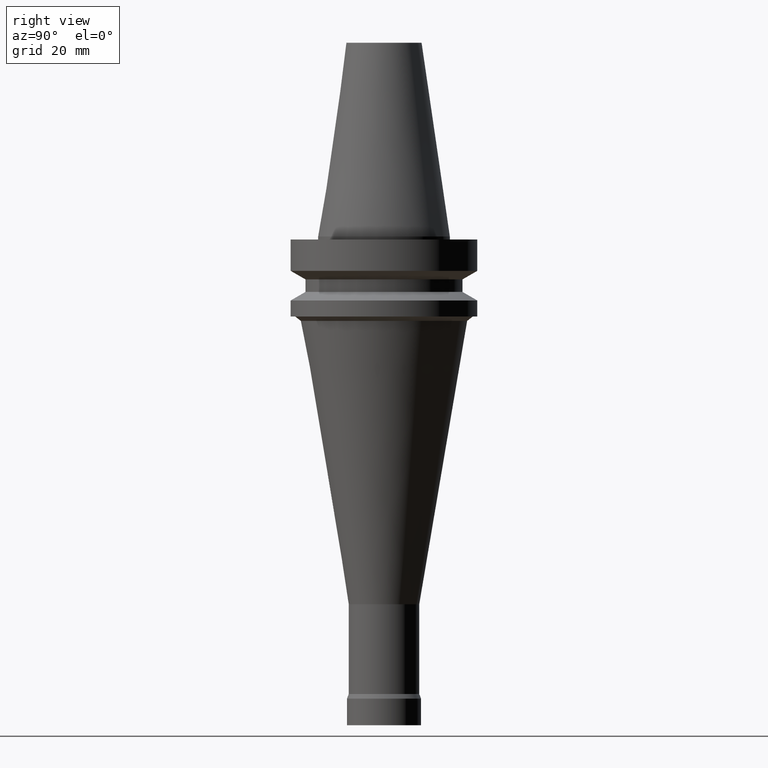
[diagram: clean part render]
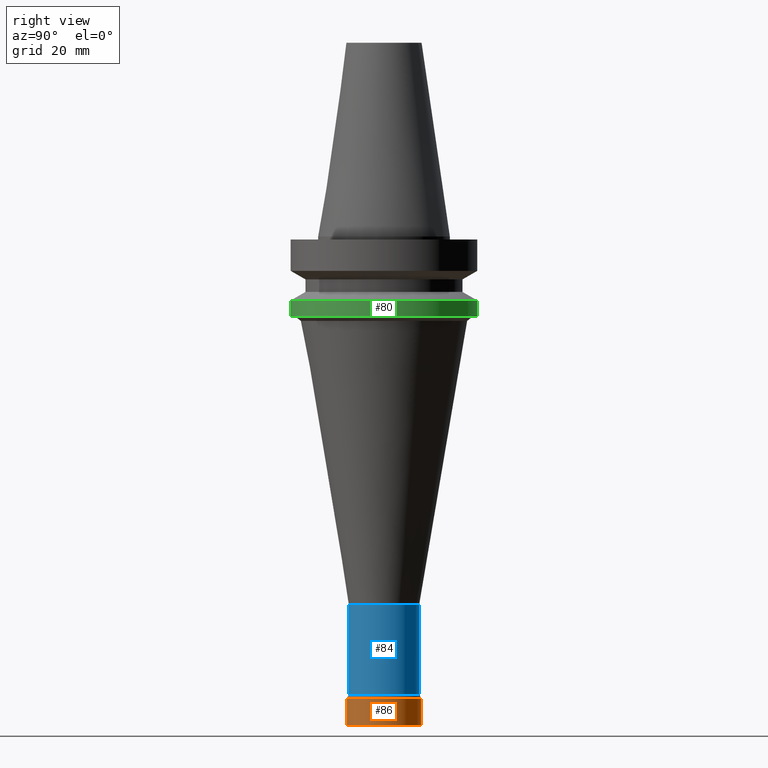
[diagram: same view with three faces highlighted in distinct colors, each labeled with its STEP entity id]
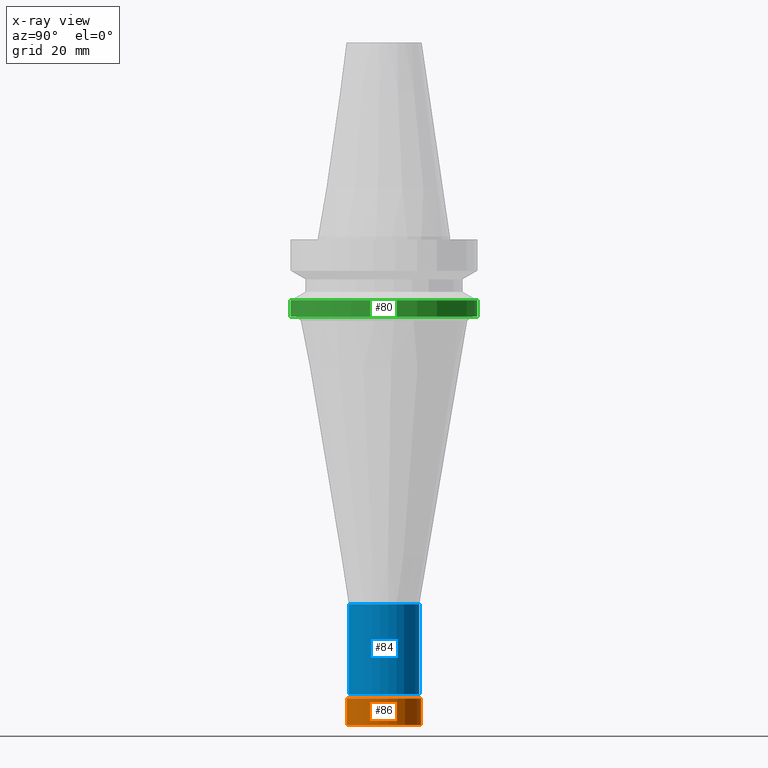
[diagram: x-ray of the same camera — body ghosted, the three highlighted faces saturated]
A machine part, right view with three faces highlighted in distinct colors.
The next image is the same camera in x-ray (body ghosted, the three faces saturated) — at least one of them is partly hidden behind the body in this view.
Their STEP definitions:

[orange] entity #86 — the highlighted cylindrical surface (bore or boss wall) has radius 12.5 mm, axis along (-0, -0, 1).
#86=ADVANCED_FACE('',(#125,#126),#127,.T.);
#125=FACE_BOUND('',#171,.T.);
#126=FACE_BOUND('',#172,.T.);
#127=CYLINDRICAL_SURFACE('',#173,12.5);
#171=EDGE_LOOP('',(#239));
#172=EDGE_LOOP('',(#240));
#173=AXIS2_PLACEMENT_3D('',#241,#242,#243);
#239=ORIENTED_EDGE('',*,*,#274,.F.);
#240=ORIENTED_EDGE('',*,*,#273,.T.);
#241=CARTESIAN_POINT('',(9.82779056315751E-015,1.9655581126315E-014,-160.5));
#242=DIRECTION('',(-6.12323399573677E-017,-1.22464679914735E-016,1.0));
#243=DIRECTION('',(-1.23259516440783E-032,1.0,1.22464679914735E-016));
#273=EDGE_CURVE('',#299,#299,#300,.T.);
#274=EDGE_CURVE('',#301,#301,#302,.T.);
#299=VERTEX_POINT('',#329);
#300=CIRCLE('',#330,12.5);
#301=VERTEX_POINT('',#331);
#302=CIRCLE('',#332,12.5);
#329=CARTESIAN_POINT('',(9.55224503334936E-015,12.5,-156.0));
#330=AXIS2_PLACEMENT_3D('',#370,#371,#372);
#331=CARTESIAN_POINT('',(1.01033360929657E-014,12.5,-165.0));
#332=AXIS2_PLACEMENT_3D('',#373,#374,#375);
#370=CARTESIAN_POINT('',(9.55224503334936E-015,1.91044900666987E-014,-156.0));
#371=DIRECTION('',(6.12323399573677E-017,1.22464679914735E-016,-1.0));
#372=DIRECTION('',(-1.23259516440783E-032,1.0,1.22464679914735E-016));
#373=CARTESIAN_POINT('',(1.01033360929657E-014,2.02066721859313E-014,-165.0));
#374=DIRECTION('',(6.12323399573677E-017,1.22464679914735E-016,-1.0));
#375=DIRECTION('',(-1.23259516440783E-032,1.0,1.22464679914735E-016));

[blue] entity #84 — the highlighted cylindrical surface (bore or boss wall) has radius 11.9 mm, axis along (-0, -0, 1).
#84=ADVANCED_FACE('',(#119,#120),#121,.T.);
#119=FACE_BOUND('',#165,.T.);
#120=FACE_BOUND('',#166,.T.);
#121=CYLINDRICAL_SURFACE('',#167,11.9);
#165=EDGE_LOOP('',(#229));
#166=EDGE_LOOP('',(#230));
#167=AXIS2_PLACEMENT_3D('',#231,#232,#233);
#229=ORIENTED_EDGE('',*,*,#272,.F.);
#230=ORIENTED_EDGE('',*,*,#271,.T.);
#231=CARTESIAN_POINT('',(8.5290879021664E-015,1.70581758043328E-014,-139.290575994723));
#232=DIRECTION('',(-6.12323399573677E-017,-1.22464679914735E-016,1.0));
#233=DIRECTION('',(-1.23259516440783E-032,1.0,1.22464679914735E-016));
#271=EDGE_CURVE('',#295,#295,#296,.T.);
#272=EDGE_CURVE('',#297,#297,#298,.T.);
#295=VERTEX_POINT('',#325);
#296=CIRCLE('',#326,11.9);
#297=VERTEX_POINT('',#327);
#298=CIRCLE('',#328,11.9);
#325=CARTESIAN_POINT('',(7.60081000436489E-015,11.9,-124.130647459445));
#326=AXIS2_PLACEMENT_3D('',#364,#365,#366);
#327=CARTESIAN_POINT('',(9.45736579996791E-015,11.9,-154.45050453));
#328=AXIS2_PLACEMENT_3D('',#367,#368,#369);
#364=CARTESIAN_POINT('',(7.60081000436489E-015,1.52016200087298E-014,-124.130647459445));
#365=DIRECTION('',(6.12323399573677E-017,1.22464679914735E-016,-1.0));
#366=DIRECTION('',(-1.23259516440783E-032,1.0,1.22464679914735E-016));
#367=CARTESIAN_POINT('',(9.45736579996791E-015,1.89147315999358E-014,-154.45050453));
#368=DIRECTION('',(6.12323399573677E-017,1.22464679914735E-016,-1.0));
#369=DIRECTION('',(-1.23259516440783E-032,1.0,1.22464679914735E-016));

[green] entity #80 — the highlighted cylindrical surface (bore or boss wall) has radius 31.5 mm, axis along (-0, -0, 1).
#80=ADVANCED_FACE('',(#107,#108),#109,.T.);
#107=FACE_BOUND('',#153,.T.);
#108=FACE_BOUND('',#154,.T.);
#109=CYLINDRICAL_SURFACE('',#155,31.5);
#153=EDGE_LOOP('',(#209));
#154=EDGE_LOOP('',(#210));
#155=AXIS2_PLACEMENT_3D('',#211,#212,#213);
#209=ORIENTED_EDGE('',*,*,#268,.F.);
#210=ORIENTED_EDGE('',*,*,#267,.T.);
#211=CARTESIAN_POINT('',(1.48794586096403E-015,2.97589172192807E-015,-24.3));
#212=DIRECTION('',(-6.12323399573677E-017,-1.22464679914735E-016,1.0));
#213=DIRECTION('',(-1.23259516440783E-032,1.0,1.22464679914735E-016));
#267=EDGE_CURVE('',#287,#287,#288,.T.);
#268=EDGE_CURVE('',#289,#289,#290,.T.);
#287=VERTEX_POINT('',#317);
#288=CIRCLE('',#318,31.5);
#289=VERTEX_POINT('',#319);
#290=CIRCLE('',#320,31.5);
#317=CARTESIAN_POINT('',(1.32261854307914E-015,31.5,-21.6));
#318=AXIS2_PLACEMENT_3D('',#352,#353,#354);
#319=CARTESIAN_POINT('',(1.65327317884893E-015,31.5,-27.0));
#320=AXIS2_PLACEMENT_3D('',#355,#356,#357);
#352=CARTESIAN_POINT('',(1.32261854307914E-015,2.64523708615828E-015,-21.6));
#353=DIRECTION('',(6.12323399573677E-017,1.22464679914735E-016,-1.0));
#354=DIRECTION('',(-1.23259516440783E-032,1.0,1.22464679914735E-016));
#355=CARTESIAN_POINT('',(1.65327317884893E-015,3.30654635769785E-015,-27.0));
#356=DIRECTION('',(6.12323399573677E-017,1.22464679914735E-016,-1.0));
#357=DIRECTION('',(-1.23259516440783E-032,1.0,1.22464679914735E-016));